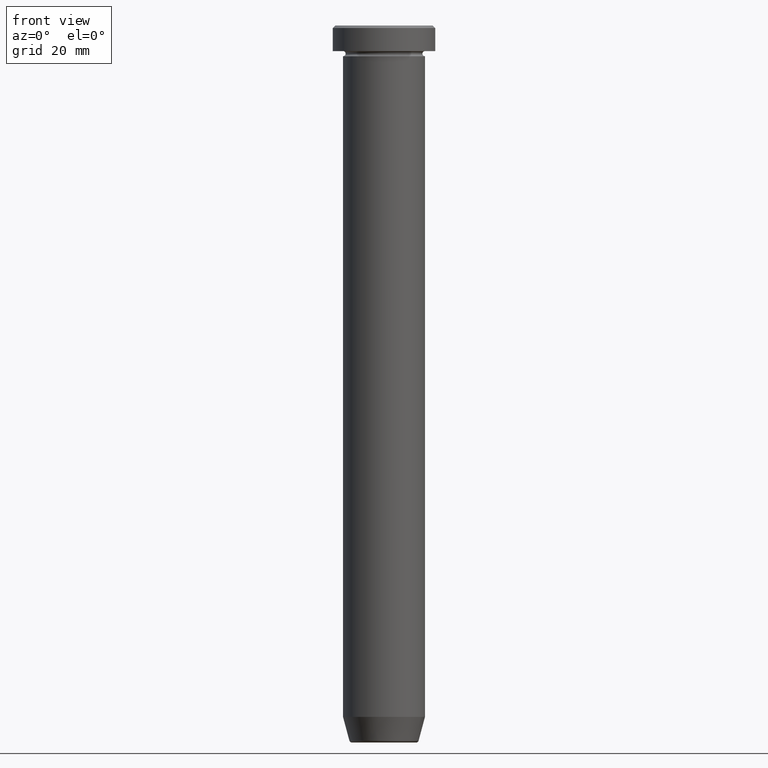
[diagram: clean part render]
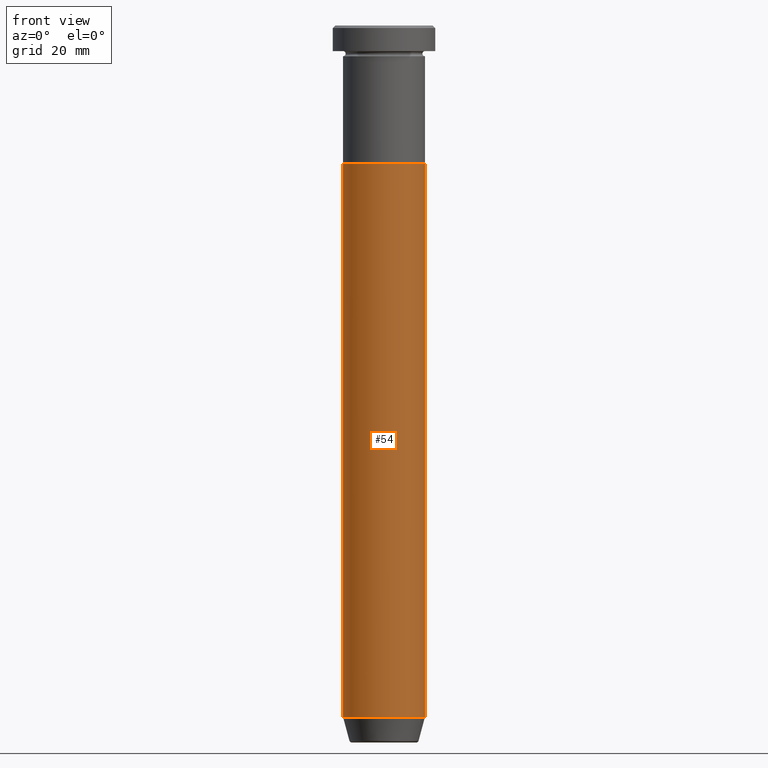
[diagram: same view with one face highlighted and labeled with its STEP entity id]
A machine part, front view. The second image highlights one B-rep face of the part: STEP entity #54.
In plain terms, the highlighted cylindrical surface (partial cylindrical patch) has radius 8 mm, axis along (-0, -0, 1).
Its self-contained STEP definition (entity closure, byte-faithful):
#1 = CARTESIAN_POINT ( 'NONE',  ( 0.000000000000000000, 0.000000000000000000, -27.00000000000000000 ) ) ;
#10 = DIRECTION ( 'NONE',  ( 1.000000000000000000, 0.000000000000000000, 0.000000000000000000 ) ) ;
#14 = VERTEX_POINT ( 'NONE', #264 ) ;
#17 = DIRECTION ( 'NONE',  ( 1.000000000000000000, 0.000000000000000000, 0.000000000000000000 ) ) ;
#39 = CIRCLE ( 'NONE', #269, 8.000000000000000000 ) ;
#46 = CARTESIAN_POINT ( 'NONE',  ( 8.000000000000000000, 0.000000000000000000, -135.0000000000000000 ) ) ;
#54 = ADVANCED_FACE ( 'NONE', ( #230 ), #106, .T. ) ;
#58 = CARTESIAN_POINT ( 'NONE',  ( 0.000000000000000000, 0.000000000000000000, 0.000000000000000000 ) ) ;
#80 = DIRECTION ( 'NONE',  ( -0.000000000000000000, -0.000000000000000000, 1.000000000000000000 ) ) ;
#92 = LINE ( 'NONE', #592, #501 ) ;
#102 = DIRECTION ( 'NONE',  ( -0.000000000000000000, -0.000000000000000000, 1.000000000000000000 ) ) ;
#106 = CYLINDRICAL_SURFACE ( 'NONE', #279, 8.000000000000000000 ) ;
#107 = ORIENTED_EDGE ( 'NONE', *, *, #536, .F. ) ;
#136 = CARTESIAN_POINT ( 'NONE',  ( 8.000000000000000000, 0.000000000000000000, -27.00000000000000000 ) ) ;
#143 = DIRECTION ( 'NONE',  ( 1.000000000000000000, 0.000000000000000000, 0.000000000000000000 ) ) ;
#152 = DIRECTION ( 'NONE',  ( -0.000000000000000000, -0.000000000000000000, 1.000000000000000000 ) ) ;
#208 = DIRECTION ( 'NONE',  ( -0.000000000000000000, -0.000000000000000000, 1.000000000000000000 ) ) ;
#229 = VECTOR ( 'NONE', #208, 1000.000000000000000 ) ;
#230 = FACE_OUTER_BOUND ( 'NONE', #586, .T. ) ;
#254 = LINE ( 'NONE', #401, #229 ) ;
#264 = CARTESIAN_POINT ( 'NONE',  ( -8.000000000000000000, 9.797174393178825657E-16, -135.0000000000000000 ) ) ;
#269 = AXIS2_PLACEMENT_3D ( 'NONE', #340, #280, #17 ) ;
#274 = VERTEX_POINT ( 'NONE', #136 ) ;
#279 = AXIS2_PLACEMENT_3D ( 'NONE', #58, #152, #10 ) ;
#280 = DIRECTION ( 'NONE',  ( -0.000000000000000000, -0.000000000000000000, 1.000000000000000000 ) ) ;
#281 = CIRCLE ( 'NONE', #585, 8.000000000000000000 ) ;
#308 = EDGE_CURVE ( 'NONE', #441, #274, #92, .T. ) ;
#340 = CARTESIAN_POINT ( 'NONE',  ( 0.000000000000000000, 0.000000000000000000, -135.0000000000000000 ) ) ;
#374 = ORIENTED_EDGE ( 'NONE', *, *, #508, .T. ) ;
#394 = EDGE_CURVE ( 'NONE', #547, #274, #281, .T. ) ;
#396 = CARTESIAN_POINT ( 'NONE',  ( -8.000000000000000000, 9.797174393178825657E-16, -27.00000000000000000 ) ) ;
#401 = CARTESIAN_POINT ( 'NONE',  ( -8.000000000000000000, 9.797174393178825657E-16, 0.000000000000000000 ) ) ;
#441 = VERTEX_POINT ( 'NONE', #46 ) ;
#501 = VECTOR ( 'NONE', #80, 1000.000000000000000 ) ;
#508 = EDGE_CURVE ( 'NONE', #14, #441, #39, .T. ) ;
#536 = EDGE_CURVE ( 'NONE', #14, #547, #254, .T. ) ;
#547 = VERTEX_POINT ( 'NONE', #396 ) ;
#549 = ORIENTED_EDGE ( 'NONE', *, *, #308, .T. ) ;
#585 = AXIS2_PLACEMENT_3D ( 'NONE', #1, #102, #143 ) ;
#586 = EDGE_LOOP ( 'NONE', ( #107, #374, #549, #591 ) ) ;
#591 = ORIENTED_EDGE ( 'NONE', *, *, #394, .F. ) ;
#592 = CARTESIAN_POINT ( 'NONE',  ( 8.000000000000000000, 0.000000000000000000, 0.000000000000000000 ) ) ;